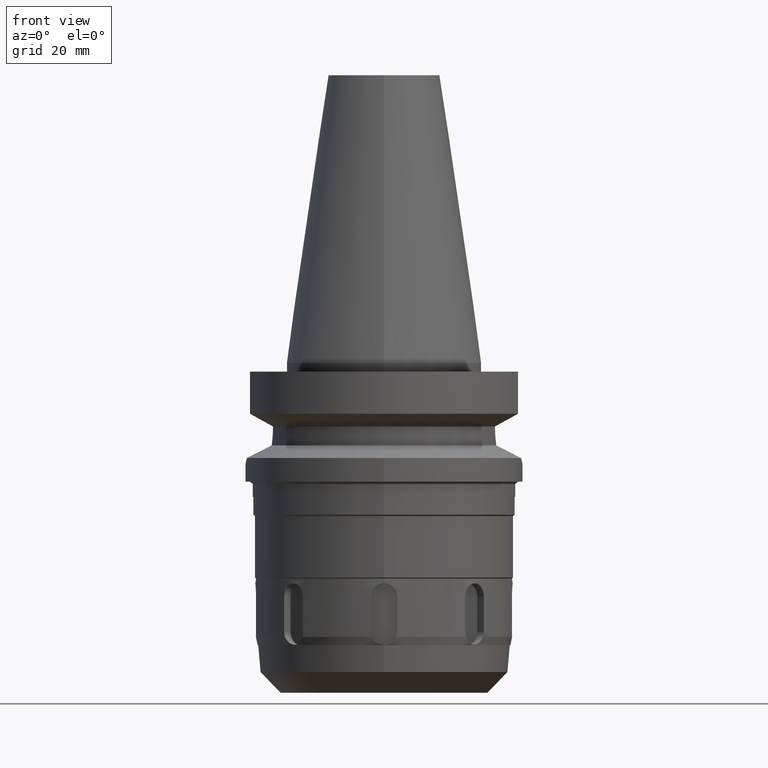
[diagram: clean part render]
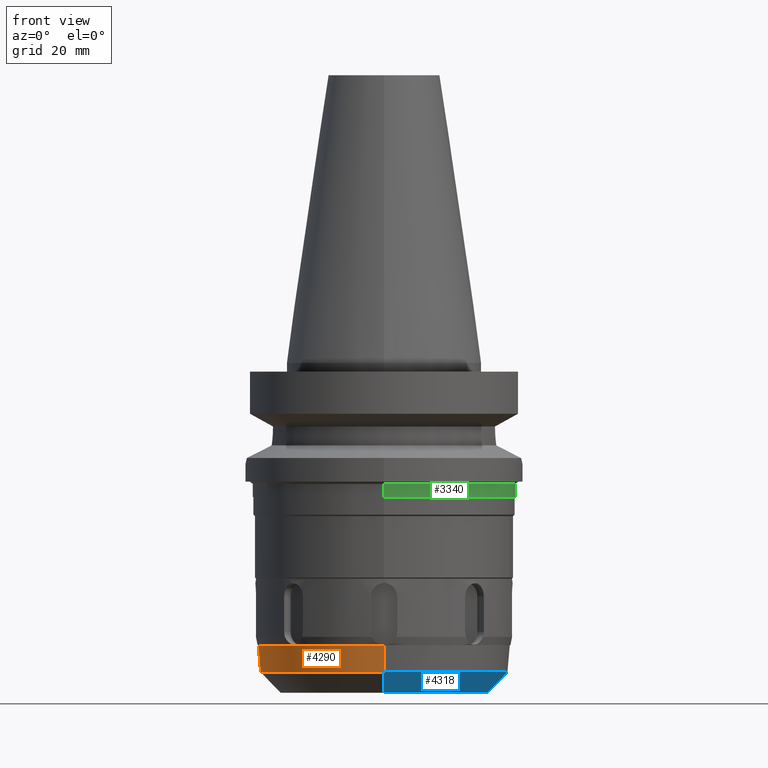
[diagram: same view with three faces highlighted in distinct colors, each labeled with its STEP entity id]
A machine part, front view with three faces highlighted in distinct colors.
Their STEP definitions:

[orange] entity #4290 — the highlighted conical surface has half-angle 5 deg.
#1222=CARTESIAN_POINT('',(0.E0,0.E0,-6.416413629499E1));
#1223=DIRECTION('',(0.E0,0.E0,-1.E0));
#1224=DIRECTION('',(0.E0,-1.E0,0.E0));
#1225=AXIS2_PLACEMENT_3D('',#1222,#1223,#1224);
#2126=DIRECTION('',(0.E0,-8.715574274796E-2,-9.961946980917E-1));
#2127=VECTOR('',#2126,6.144244409989E0);
#2128=CARTESIAN_POINT('',(0.E0,2.875050618518E1,-6.416413629499E1));
#2129=LINE('',#2128,#2127);
#2141=DIRECTION('',(0.E0,8.715574274796E-2,-9.961946980917E-1));
#2142=VECTOR('',#2141,6.144244409989E0);
#2143=CARTESIAN_POINT('',(-1.628871111192E-14,-2.875050618518E1,
-6.416413629499E1));
#2144=LINE('',#2143,#2142);
#2148=CARTESIAN_POINT('',(0.E0,0.E0,-7.0285E1));
#2149=DIRECTION('',(0.E0,0.E0,-1.E0));
#2150=DIRECTION('',(0.E0,-1.E0,0.E0));
#2151=AXIS2_PLACEMENT_3D('',#2148,#2149,#2150);
#2556=CARTESIAN_POINT('',(0.E0,2.8215E1,-7.0285E1));
#2557=VERTEX_POINT('',#2556);
#2558=CARTESIAN_POINT('',(0.E0,-2.8215E1,-7.0285E1));
#2559=VERTEX_POINT('',#2558);
#2560=CARTESIAN_POINT('',(0.E0,2.875050618518E1,-6.416413629499E1));
#2561=VERTEX_POINT('',#2560);
#2562=CARTESIAN_POINT('',(-2.905650068649E-14,-2.875050618518E1,
-6.416413629499E1));
#2563=VERTEX_POINT('',#2562);
#4278=CARTESIAN_POINT('',(0.E0,0.E0,-6.722456814749E1));
#4279=DIRECTION('',(0.E0,0.E0,1.E0));
#4280=DIRECTION('',(0.E0,1.E0,0.E0));
#4281=AXIS2_PLACEMENT_3D('',#4278,#4279,#4280);
#4282=CONICAL_SURFACE('',#4281,2.848275309259E1,5.000000000001E0);
#4283=ORIENTED_EDGE('',*,*,#4268,.F.);
#4284=ORIENTED_EDGE('',*,*,#3619,.F.);
#4285=ORIENTED_EDGE('',*,*,#4272,.T.);
#4287=ORIENTED_EDGE('',*,*,#4286,.T.);
#4288=EDGE_LOOP('',(#4283,#4284,#4285,#4287));
#4289=FACE_OUTER_BOUND('',#4288,.F.);
#1226=CIRCLE('',#1225,2.875050618518E1);
#2152=CIRCLE('',#2151,2.8215E1);
#3619=EDGE_CURVE('',#2563,#2561,#1226,.T.);
#4268=EDGE_CURVE('',#2561,#2557,#2129,.T.);
#4272=EDGE_CURVE('',#2563,#2559,#2144,.T.);
#4286=EDGE_CURVE('',#2559,#2557,#2152,.T.);
#4290=ADVANCED_FACE('',(#4289),#4282,.T.);

[blue] entity #4318 — the highlighted conical surface has half-angle 45 deg.
#2156=DIRECTION('',(0.E0,7.071067811867E-1,-7.071067811864E-1));
#2157=VECTOR('',#2156,6.668016946590E0);
#2158=CARTESIAN_POINT('',(0.E0,-2.8215E1,-7.0285E1));
#2159=LINE('',#2158,#2157);
#2163=DIRECTION('',(0.E0,-7.071067811867E-1,-7.071067811864E-1));
#2164=VECTOR('',#2163,6.668016946590E0);
#2165=CARTESIAN_POINT('',(0.E0,2.8215E1,-7.0285E1));
#2166=LINE('',#2165,#2164);
#2170=CARTESIAN_POINT('',(0.E0,0.E0,-7.0285E1));
#2171=DIRECTION('',(0.E0,0.E0,1.E0));
#2172=DIRECTION('',(0.E0,-1.E0,0.E0));
#2173=AXIS2_PLACEMENT_3D('',#2170,#2171,#2172);
#2178=CARTESIAN_POINT('',(0.E0,0.E0,-7.5E1));
#2179=DIRECTION('',(0.E0,0.E0,1.E0));
#2180=DIRECTION('',(0.E0,-1.E0,0.E0));
#2181=AXIS2_PLACEMENT_3D('',#2178,#2179,#2180);
#2552=CARTESIAN_POINT('',(0.E0,-2.35E1,-7.5E1));
#2553=CARTESIAN_POINT('',(0.E0,2.35E1,-7.5E1));
#2554=VERTEX_POINT('',#2552);
#2555=VERTEX_POINT('',#2553);
#2556=CARTESIAN_POINT('',(0.E0,2.8215E1,-7.0285E1));
#2557=VERTEX_POINT('',#2556);
#2558=CARTESIAN_POINT('',(0.E0,-2.8215E1,-7.0285E1));
#2559=VERTEX_POINT('',#2558);
#4306=CARTESIAN_POINT('',(0.E0,0.E0,-7.26425E1));
#4307=DIRECTION('',(0.E0,0.E0,1.E0));
#4308=DIRECTION('',(0.E0,1.E0,0.E0));
#4309=AXIS2_PLACEMENT_3D('',#4306,#4307,#4308);
#4310=CONICAL_SURFACE('',#4309,2.58575E1,4.5E1);
#4311=ORIENTED_EDGE('',*,*,#4296,.T.);
#4313=ORIENTED_EDGE('',*,*,#4312,.F.);
#4314=ORIENTED_EDGE('',*,*,#4299,.F.);
#4315=ORIENTED_EDGE('',*,*,#4270,.T.);
#4316=EDGE_LOOP('',(#4311,#4313,#4314,#4315));
#4317=FACE_OUTER_BOUND('',#4316,.F.);
#2174=CIRCLE('',#2173,2.8215E1);
#2182=CIRCLE('',#2181,2.35E1);
#4270=EDGE_CURVE('',#2559,#2557,#2174,.T.);
#4296=EDGE_CURVE('',#2557,#2555,#2166,.T.);
#4299=EDGE_CURVE('',#2559,#2554,#2159,.T.);
#4312=EDGE_CURVE('',#2554,#2555,#2182,.T.);
#4318=ADVANCED_FACE('',(#4317),#4310,.T.);

[green] entity #3340 — the highlighted cylindrical surface (partial cylindrical patch) has radius 30 mm, axis along (0, 0, -1).
#682=CARTESIAN_POINT('',(0.E0,0.E0,-2.75E1));
#683=DIRECTION('',(0.E0,0.E0,-1.E0));
#684=DIRECTION('',(0.E0,1.E0,0.E0));
#685=AXIS2_PLACEMENT_3D('',#682,#683,#684);
#690=DIRECTION('',(0.E0,0.E0,-1.E0));
#691=VECTOR('',#690,3.E0);
#692=CARTESIAN_POINT('',(0.E0,3.E1,-2.75E1));
#693=LINE('',#692,#691);
#697=DIRECTION('',(0.E0,0.E0,-1.E0));
#698=VECTOR('',#697,3.E0);
#699=CARTESIAN_POINT('',(0.E0,-3.E1,-2.75E1));
#700=LINE('',#699,#698);
#704=CARTESIAN_POINT('',(0.E0,2.111536011090E-14,-3.05E1));
#705=DIRECTION('',(0.E0,0.E0,1.E0));
#706=DIRECTION('',(0.E0,-1.E0,0.E0));
#707=AXIS2_PLACEMENT_3D('',#704,#705,#706);
#2692=CARTESIAN_POINT('',(0.E0,-3.E1,-3.05E1));
#2693=CARTESIAN_POINT('',(0.E0,3.E1,-3.05E1));
#2694=VERTEX_POINT('',#2692);
#2695=VERTEX_POINT('',#2693);
#2696=CARTESIAN_POINT('',(0.E0,3.E1,-2.75E1));
#2697=VERTEX_POINT('',#2696);
#2698=CARTESIAN_POINT('',(0.E0,-3.E1,-2.75E1));
#2699=VERTEX_POINT('',#2698);
#3326=CARTESIAN_POINT('',(0.E0,2.111536011090E-14,7.242E1));
#3327=DIRECTION('',(0.E0,0.E0,-1.E0));
#3328=DIRECTION('',(0.E0,-1.E0,0.E0));
#3329=AXIS2_PLACEMENT_3D('',#3326,#3327,#3328);
#3330=CYLINDRICAL_SURFACE('',#3329,3.E1);
#3332=ORIENTED_EDGE('',*,*,#3331,.T.);
#3334=ORIENTED_EDGE('',*,*,#3333,.F.);
#3336=ORIENTED_EDGE('',*,*,#3335,.F.);
#3337=ORIENTED_EDGE('',*,*,#3319,.F.);
#3338=EDGE_LOOP('',(#3332,#3334,#3336,#3337));
#3339=FACE_OUTER_BOUND('',#3338,.F.);
#686=CIRCLE('',#685,3.E1);
#708=CIRCLE('',#707,3.E1);
#3319=EDGE_CURVE('',#2697,#2699,#686,.T.);
#3331=EDGE_CURVE('',#2697,#2695,#693,.T.);
#3333=EDGE_CURVE('',#2694,#2695,#708,.T.);
#3335=EDGE_CURVE('',#2699,#2694,#700,.T.);
#3340=ADVANCED_FACE('',(#3339),#3330,.T.);